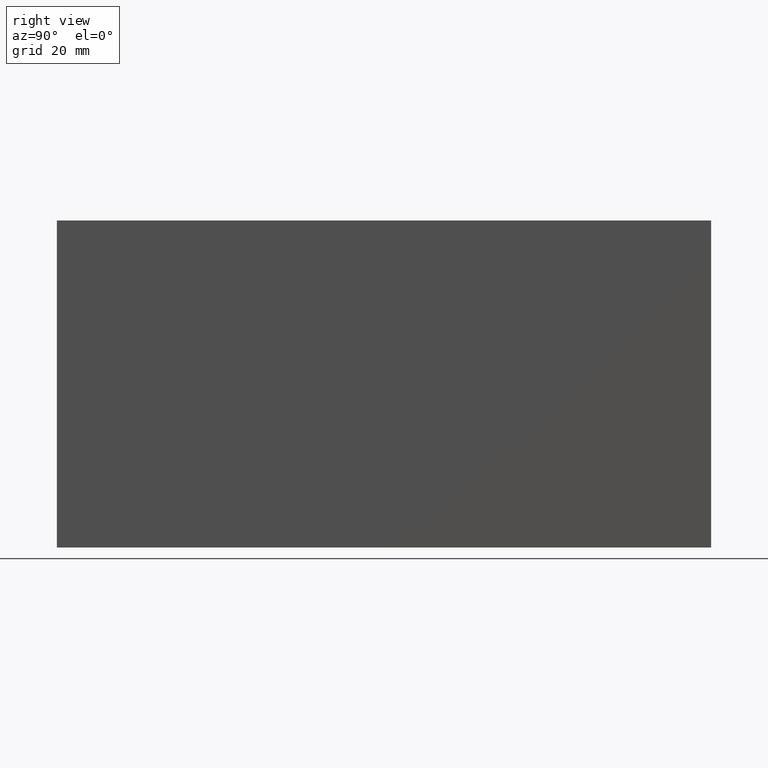
[diagram: clean part render]
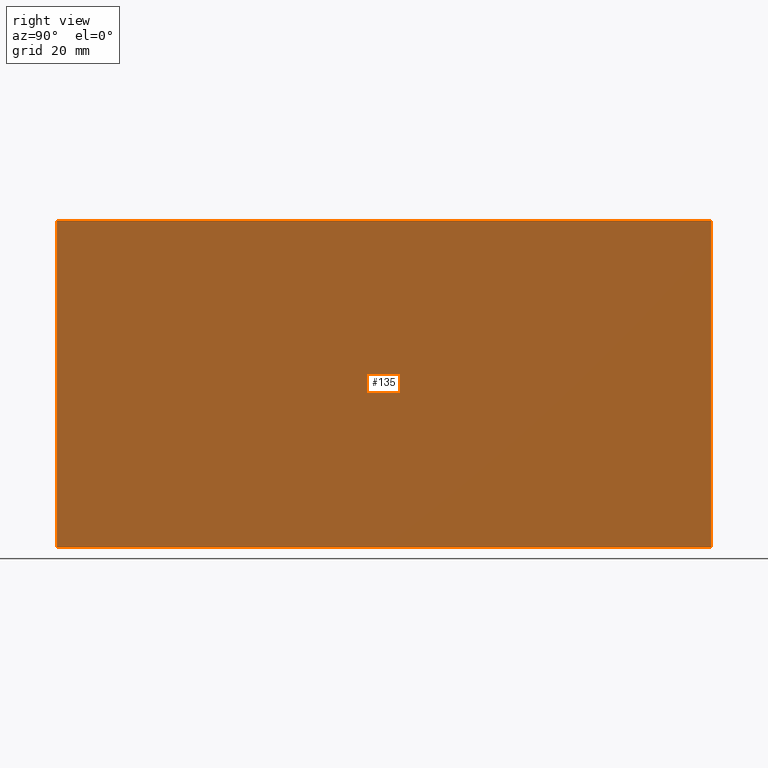
[diagram: same view with one face highlighted and labeled with its STEP entity id]
A machine part, right view. The second image highlights one B-rep face of the part: STEP entity #135.
In plain terms, the highlighted face is a freeform B-spline surface patch.
Its self-contained STEP definition (entity closure, byte-faithful):
#49=CARTESIAN_POINT('',(0.600000000000030,0.0,100.0));
#50=VERTEX_POINT('',#49);
#65=CARTESIAN_POINT('',(0.600000000000030,0.0,3.410605E-013));
#66=VERTEX_POINT('',#65);
#72=CARTESIAN_POINT('',(0.600000000000030,0.0,3.410605E-013));
#73=CARTESIAN_POINT('',(0.600000000000030,0.0,100.0));
#74=QUASI_UNIFORM_CURVE('',1,(#72,#73),.UNSPECIFIED.,.F.,.U.);
#75=EDGE_CURVE('',#66,#50,#74,.T.);
#85=CARTESIAN_POINT('',(0.600000000000030,200.0,100.0));
#86=VERTEX_POINT('',#85);
#94=CARTESIAN_POINT('',(0.600000000000030,200.0,3.410605E-013));
#95=VERTEX_POINT('',#94);
#96=CARTESIAN_POINT('',(0.600000000000030,200.0,3.410605E-013));
#97=CARTESIAN_POINT('',(0.600000000000030,200.0,100.0));
#98=QUASI_UNIFORM_CURVE('',1,(#96,#97),.UNSPECIFIED.,.F.,.U.);
#99=EDGE_CURVE('',#95,#86,#98,.T.);
#116=CARTESIAN_POINT('',(0.600000000000030,-9.989999612361194,104.994999806180600));
#117=CARTESIAN_POINT('',(0.600000000000030,-9.989999612361194,-4.995002488389258));
#118=CARTESIAN_POINT('',(0.600000000000030,209.990004976779200,104.994999806180600));
#119=CARTESIAN_POINT('',(0.600000000000030,209.990004976779200,-4.995002488389258));
#120=B_SPLINE_SURFACE_WITH_KNOTS('',1,1,((#116,#118),(#117,#119)),.UNSPECIFIED.,.F.,.F.,.U.,(2,2),(2,2),(0.0,109.990002294569810),(0.0,219.980004589140410),.UNSPECIFIED.);
#121=ORIENTED_EDGE('',*,*,#75,.F.);
#122=CARTESIAN_POINT('',(0.600000000000030,200.0,3.410605E-013));
#123=CARTESIAN_POINT('',(0.600000000000030,0.0,3.410605E-013));
#124=QUASI_UNIFORM_CURVE('',1,(#122,#123),.UNSPECIFIED.,.F.,.U.);
#125=EDGE_CURVE('',#95,#66,#124,.T.);
#126=ORIENTED_EDGE('',*,*,#125,.F.);
#127=ORIENTED_EDGE('',*,*,#99,.T.);
#128=CARTESIAN_POINT('',(0.600000000000030,200.0,100.0));
#129=CARTESIAN_POINT('',(0.600000000000030,0.0,100.0));
#130=QUASI_UNIFORM_CURVE('',1,(#128,#129),.UNSPECIFIED.,.F.,.U.);
#131=EDGE_CURVE('',#86,#50,#130,.T.);
#132=ORIENTED_EDGE('',*,*,#131,.T.);
#133=EDGE_LOOP('',(#121,#126,#127,#132));
#134=FACE_OUTER_BOUND('',#133,.T.);
#135=ADVANCED_FACE('',(#134),#120,.T.);